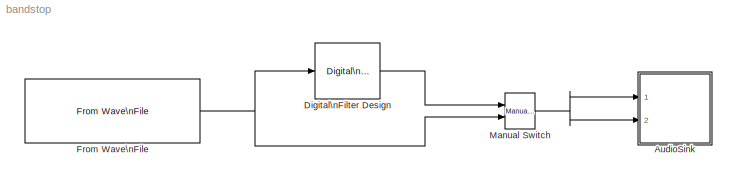
MODEL bandstop
KIND model
CONFIG PreLoadFcn = Tsysclk=1/24000000; \naudio_data = wavread('Yabu_sample_16_mono.wav');\naudio_size = size(audio_data);\naudio_time=(1:1:audio_size(1));\naudio_in = [audio_time' audio_data];
CONFIG StartFcn = tic
CONFIG StopFcn = toc
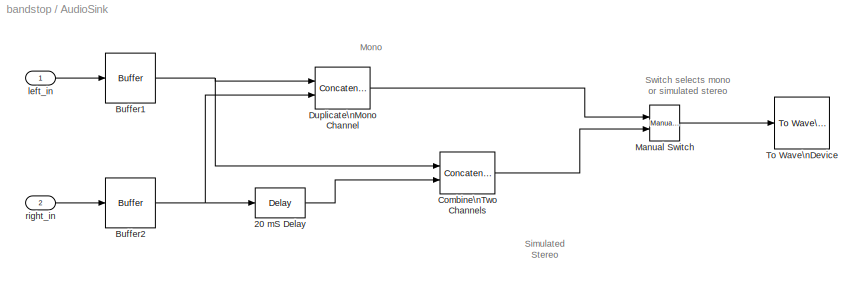
BLOCK [SubSystem] AudioSink
  FunctionWithSeparateData = off
  MaskHideContents = off
  MinAlgLoopOccurrences = off
  Ports = [2]
  RTWSystemCode = Auto
BLOCK [Reference] AudioSink/20 mS Delay  REF=dspsigops/Delay
  Ports = [1, 1]
  SourceBlock = dspsigops/Delay
  SourceType = Delay
  delay = 20e-3 * 48000
  dif_ic_for_ch = off
  dif_ic_for_dly = off
  dly_unit = Samples
  ic = 0
  ic_detail = on
  reset_popup = None
BLOCK [Reference] AudioSink/Buffer1  REF=dspbuff3/Buffer
  N = 1
  Ports = [1, 1]
  SourceBlock = dspbuff3/Buffer
  SourceType = Buffer
  V = 0
  ic = 0
BLOCK [Reference] AudioSink/Buffer2  REF=dspbuff3/Buffer
  N = 1
  Ports = [1, 1]
  SourceBlock = dspbuff3/Buffer
  SourceType = Buffer
  V = 0
  ic = 0
BLOCK [Concatenate] AudioSink/Combine\nTwo Channels
  ConcatenateDimension = 2
  Mode = Multidimensional array
  Ports = [2, 1]
BLOCK [Concatenate] AudioSink/Duplicate\nMono Channel
  ConcatenateDimension = 2
  Mode = Multidimensional array
  Ports = [2, 1]
BLOCK [Reference] AudioSink/Manual Switch  REF=simulink/Signal\nRouting/Manual Switch
  FunctionWithSeparateData = off
  Ports = [2, 1]
  RTWMemSecDataConstants = Inherit from model
  RTWMemSecDataInternal = Inherit from model
  RTWMemSecDataParameters = Inherit from model
  RTWMemSecFuncExecute = Inherit from model
  RTWMemSecFuncInitTerm = Inherit from model
  ShowPortLabels = on
  SourceBlock = simulink/Signal\nRouting/Manual Switch
  SourceType = Manual Switch
  SystemSampleTime = -1
  action = 0
  sw = 1
BLOCK [Reference] AudioSink/To Wave\nDevice  REF=dspwin32/To Wave\nDevice
  Ports = [1]
  SourceBlock = dspwin32/To Wave\nDevice
  SourceType = To Wave Device
  bufDuration = 0.1
  determineBufSize = on
  enable24Bit = off
  initDelay = 0.1
  useDefaultDevice = on
  userDeviceID = SigmaTel Audio
  userIntBufSize = 256
BLOCK [Inport] AudioSink/left_in
  IconDisplay = Port number
BLOCK [Inport] AudioSink/right_in
  IconDisplay = Port number
  Port = 2
BLOCK [Reference] Digital\nFilter Design  REF=dsparch4/Digital\nFilter Design
  FunctionWithSeparateData = off
  Ports = [1, 1]
  RTWMemSecDataConstants = Inherit from model
  RTWMemSecDataInternal = Inherit from model
  RTWMemSecDataParameters = Inherit from model
  RTWMemSecFuncExecute = Inherit from model
  RTWMemSecFuncInitTerm = Inherit from model
  ShowPortLabels = on
  SourceBlock = dsparch4/Digital\nFilter Design
  SourceType = Digital Filter Design
  SystemSampleTime = -1
  UserData = DataTag0
  UserDataPersistent = on
  mwdsp_browser_bugfix_var = off
BLOCK [Reference] From Wave\nFile  REF=dspwin32/From Wave\nFile
  FileName = Yabu_sample_2kHz_tone
  MinBufSize = 1
  Ports = [0, 1]
  SamplesPerFrame = 1
  SourceBlock = dspwin32/From Wave\nFile
  SourceType = From Wave File
  bLoop = off
  dType = double
  firstSampleOutput = off
  lastSampleOutput = off
  restartMode = immediately after last sample
  timesToPlay = 1
BLOCK [Reference] Manual Switch  REF=simulink/Signal\nRouting/Manual Switch
  FunctionWithSeparateData = off
  Ports = [2, 1]
  RTWMemSecDataConstants = Inherit from model
  RTWMemSecDataInternal = Inherit from model
  RTWMemSecDataParameters = Inherit from model
  RTWMemSecFuncExecute = Inherit from model
  RTWMemSecFuncInitTerm = Inherit from model
  ShowPortLabels = FromPortIcon
  SourceBlock = simulink/Signal\nRouting/Manual Switch
  SourceType = Manual Switch
  SystemSampleTime = -1
  action = 0
  sw = 1
  varsize = off
ANNOTATION AudioSink: Mono
ANNOTATION AudioSink: Simulated\nStereo
ANNOTATION AudioSink: Switch selects mono\nor simulated stereo
LINE AudioSink/20 mS Delay:1 -> AudioSink/Combine\nTwo Channels:2
NET AudioSink/Buffer1:1 -> AudioSink/Combine\nTwo Channels:1, AudioSink/Duplicate\nMono Channel:1
NET AudioSink/Buffer2:1 -> AudioSink/20 mS Delay:1, AudioSink/Duplicate\nMono Channel:2
LINE AudioSink/Combine\nTwo Channels:1 -> AudioSink/Manual Switch:2
LINE AudioSink/Duplicate\nMono Channel:1 -> AudioSink/Manual Switch:1
LINE AudioSink/Manual Switch:1 -> AudioSink/To Wave\nDevice:1
LINE AudioSink/left_in:1 -> AudioSink/Buffer1:1
LINE AudioSink/right_in:1 -> AudioSink/Buffer2:1
LINE Digital\nFilter Design:1 -> Manual Switch:1
NET From Wave\nFile:1 -> Digital\nFilter Design:1, Manual Switch:2
NET Manual Switch:1 -> AudioSink:1, AudioSink:2
note: NET lines group one-source signal fan-out (src -> all destinations, sorted); 1:1 wires keep LINE
